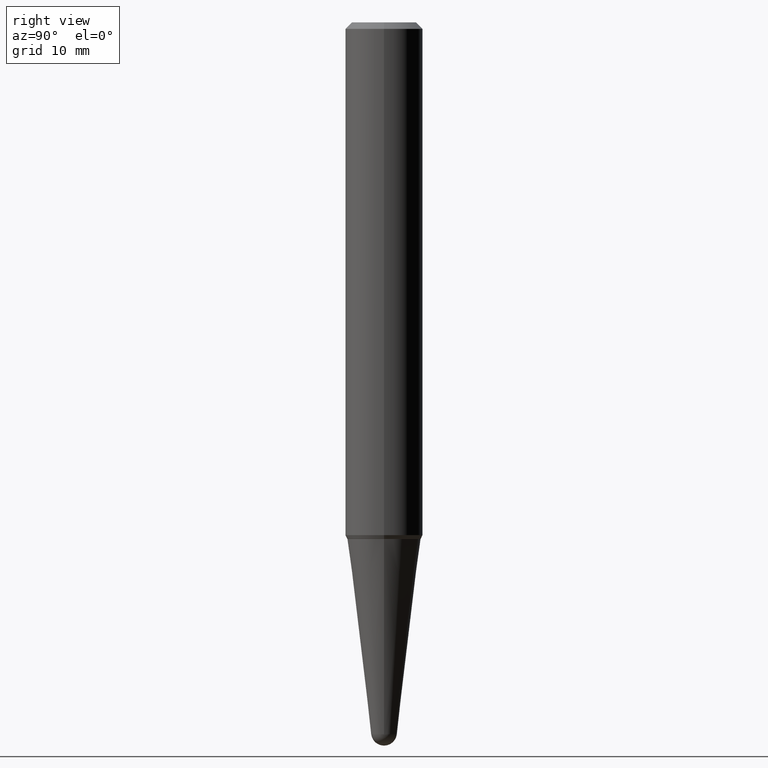
[diagram: clean part render]
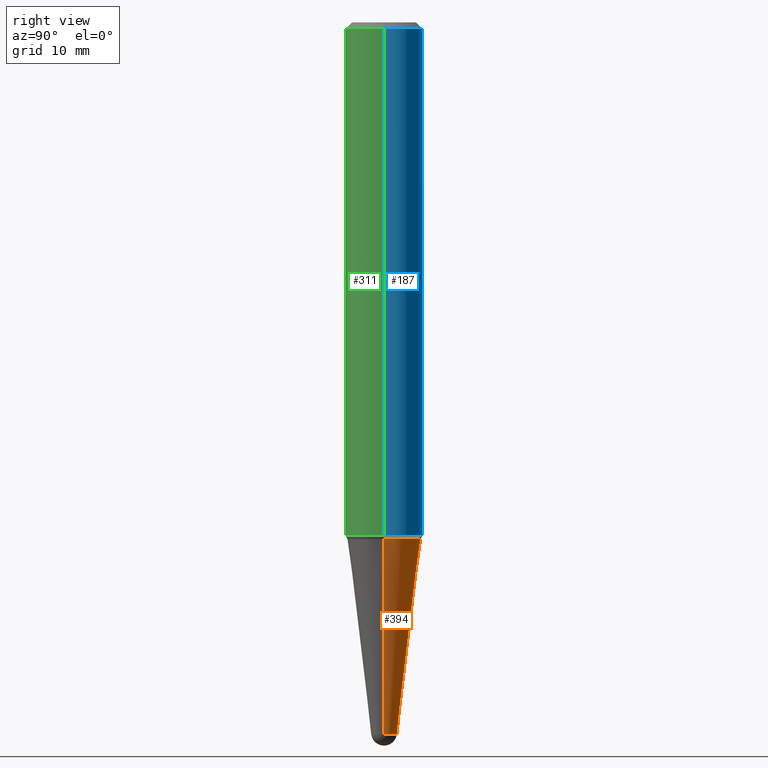
[diagram: same view with three faces highlighted in distinct colors, each labeled with its STEP entity id]
A machine part, right view with three faces highlighted in distinct colors.
Their STEP definitions:

[orange] entity #394 — the highlighted conical surface has half-angle 7 deg.
#5 = DIRECTION ( 'NONE',  ( -2.445468806185136597E-29, 3.491481338843145583E-15, 1.000000000000000000 ) ) ;
#7 = CIRCLE ( 'NONE', #357, 0.06203413447758302640 ) ;
#10 = CARTESIAN_POINT ( 'NONE',  ( 8.424925751119379227E-29, -1.202856113591557066E-14, -3.445116833962821534 ) ) ;
#27 = VERTEX_POINT ( 'NONE', #62 ) ;
#39 = DIRECTION ( 'NONE',  ( 1.000000000000000000, -6.982962677686273810E-15, 0.000000000000000000 ) ) ;
#62 = CARTESIAN_POINT ( 'NONE',  ( -0.06203413447758302640, -9.525575862499874588E-15, -3.445116833962821534 ) ) ;
#68 = VECTOR ( 'NONE', #197, 39.37007874015748143 ) ;
#71 = DIRECTION ( 'NONE',  ( -2.445468806185136597E-29, 3.491481338843145583E-15, 1.000000000000000000 ) ) ;
#90 = DIRECTION ( 'NONE',  ( -0.1218693434051475594, 4.331390133080061195E-15, 0.9925461516413219831 ) ) ;
#92 = EDGE_CURVE ( 'NONE', #27, #412, #225, .T. ) ;
#105 = CARTESIAN_POINT ( 'NONE',  ( 8.424925751119379227E-29, -1.202856113591557066E-14, -3.445116833962821534 ) ) ;
#110 = VERTEX_POINT ( 'NONE', #339 ) ;
#116 = CIRCLE ( 'NONE', #165, 0.06203413447758302640 ) ;
#121 = CARTESIAN_POINT ( 'NONE',  ( -0.1780798899376515865, -7.463369625306297822E-15, -2.499999999999999556 ) ) ;
#139 = CARTESIAN_POINT ( 'NONE',  ( 8.424925751119379227E-29, -1.202856113591557066E-14, -3.445116833962821534 ) ) ;
#141 = VECTOR ( 'NONE', #90, 39.37007874015748143 ) ;
#145 = DIRECTION ( 'NONE',  ( -2.445468806185136597E-29, 3.491481338843145583E-15, 1.000000000000000000 ) ) ;
#146 = EDGE_CURVE ( 'NONE', #408, #27, #116, .T. ) ;
#165 = AXIS2_PLACEMENT_3D ( 'NONE', #139, #71, #276 ) ;
#197 = DIRECTION ( 'NONE',  ( 0.1218693434051475594, 2.614447289843978112E-15, 0.9925461516413219831 ) ) ;
#210 = FACE_OUTER_BOUND ( 'NONE', #299, .T. ) ;
#225 = LINE ( 'NONE', #266, #141 ) ;
#229 = CARTESIAN_POINT ( 'NONE',  ( 4.331820457996177602E-16, 0.06203413447757105681, -3.445116833962821534 ) ) ;
#242 = DIRECTION ( 'NONE',  ( -2.445468806185136597E-29, 3.491481338843145583E-15, 1.000000000000000000 ) ) ;
#246 = AXIS2_PLACEMENT_3D ( 'NONE', #10, #145, #39 ) ;
#250 = CARTESIAN_POINT ( 'NONE',  ( 6.113672015462840371E-29, -8.728703347107863365E-15, -2.499999999999999556 ) ) ;
#254 = EDGE_CURVE ( 'NONE', #345, #110, #312, .T. ) ;
#255 = ORIENTED_EDGE ( 'NONE', *, *, #358, .F. ) ;
#266 = CARTESIAN_POINT ( 'NONE',  ( -0.06203413447758302640, -1.158778209969345293E-14, -3.445116833962821534 ) ) ;
#269 = EDGE_CURVE ( 'NONE', #345, #408, #7, .T. ) ;
#276 = DIRECTION ( 'NONE',  ( 1.000000000000000000, -6.982962677686273810E-15, 0.000000000000000000 ) ) ;
#279 = CIRCLE ( 'NONE', #415, 0.1780798899376515865 ) ;
#299 = EDGE_LOOP ( 'NONE', ( #320, #421, #255, #446, #377 ) ) ;
#312 = LINE ( 'NONE', #423, #68 ) ;
#313 = CARTESIAN_POINT ( 'NONE',  ( 0.06203413447758302640, -1.121698587695203239E-14, -3.445116833962821534 ) ) ;
#320 = ORIENTED_EDGE ( 'NONE', *, *, #146, .T. ) ;
#339 = CARTESIAN_POINT ( 'NONE',  ( 0.1780798899376515865, -9.972228572188961407E-15, -2.499999999999999556 ) ) ;
#345 = VERTEX_POINT ( 'NONE', #313 ) ;
#356 = DIRECTION ( 'NONE',  ( 1.000000000000000000, -6.982962677686273810E-15, 0.000000000000000000 ) ) ;
#357 = AXIS2_PLACEMENT_3D ( 'NONE', #105, #242, #356 ) ;
#358 = EDGE_CURVE ( 'NONE', #110, #412, #279, .T. ) ;
#377 = ORIENTED_EDGE ( 'NONE', *, *, #269, .T. ) ;
#394 = ADVANCED_FACE ( 'NONE', ( #210 ), #453, .T. ) ;
#397 = DIRECTION ( 'NONE',  ( 1.000000000000000000, -6.982962677686261189E-15, 0.000000000000000000 ) ) ;
#408 = VERTEX_POINT ( 'NONE', #229 ) ;
#412 = VERTEX_POINT ( 'NONE', #121 ) ;
#415 = AXIS2_PLACEMENT_3D ( 'NONE', #250, #5, #397 ) ;
#421 = ORIENTED_EDGE ( 'NONE', *, *, #92, .T. ) ;
#423 = CARTESIAN_POINT ( 'NONE',  ( 0.06203413447758302640, -1.246174318171510337E-14, -3.445116833962821534 ) ) ;
#446 = ORIENTED_EDGE ( 'NONE', *, *, #254, .F. ) ;
#453 = CONICAL_SURFACE ( 'NONE', #246, 0.06203413447758302640, 0.1221730476396031551 ) ;

[blue] entity #187 — the highlighted cylindrical surface (partial cylindrical patch) has radius 4.7625 mm, axis along (-0, 0, 1).
#29 = LINE ( 'NONE', #65, #213 ) ;
#33 = DIRECTION ( 'NONE',  ( -2.445468806185136877E-29, 3.491481338843145188E-15, 1.000000000000000000 ) ) ;
#35 = AXIS2_PLACEMENT_3D ( 'NONE', #245, #392, #209 ) ;
#59 = CARTESIAN_POINT ( 'NONE',  ( 0.1874999999999999722, -1.418414293905023123E-15, -0.03125000000000003469 ) ) ;
#61 = AXIS2_PLACEMENT_3D ( 'NONE', #168, #271, #169 ) ;
#65 = CARTESIAN_POINT ( 'NONE',  ( 0.1875000000000001388, -1.309305502066173825E-15, 5.931196827434387479E-16 ) ) ;
#69 = LINE ( 'NONE', #125, #322 ) ;
#79 = EDGE_LOOP ( 'NONE', ( #182, #215, #227, #170 ) ) ;
#100 = DIRECTION ( 'NONE',  ( -2.445468806185136877E-29, 3.491481338843145188E-15, 1.000000000000000000 ) ) ;
#106 = EDGE_CURVE ( 'NONE', #350, #150, #280, .T. ) ;
#107 = VERTEX_POINT ( 'NONE', #59 ) ;
#125 = CARTESIAN_POINT ( 'NONE',  ( -0.1875000000000001388, 1.332267629550191201E-15, 5.931196827434205055E-16 ) ) ;
#150 = VERTEX_POINT ( 'NONE', #244 ) ;
#154 = AXIS2_PLACEMENT_3D ( 'NONE', #230, #369, #333 ) ;
#168 = CARTESIAN_POINT ( 'NONE',  ( 7.642090019328561499E-31, -1.091087918388484350E-16, -0.03125000000000003469 ) ) ;
#169 = DIRECTION ( 'NONE',  ( 1.000000000000000000, -6.982962677686266711E-15, 0.000000000000000000 ) ) ;
#170 = ORIENTED_EDGE ( 'NONE', *, *, #220, .F. ) ;
#177 = CARTESIAN_POINT ( 'NONE',  ( 0.1875000000000003331, -9.973217484784825205E-15, -2.481443015699839716 ) ) ;
#182 = ORIENTED_EDGE ( 'NONE', *, *, #106, .T. ) ;
#187 = ADVANCED_FACE ( 'NONE', ( #386 ), #205, .T. ) ;
#205 = CYLINDRICAL_SURFACE ( 'NONE', #35, 0.1875000000000001388 ) ;
#209 = DIRECTION ( 'NONE',  ( 1.000000000000000000, -6.982962677686266711E-15, 4.852736867747362844E-29 ) ) ;
#213 = VECTOR ( 'NONE', #33, 39.37007874015748143 ) ;
#215 = ORIENTED_EDGE ( 'NONE', *, *, #228, .T. ) ;
#220 = EDGE_CURVE ( 'NONE', #350, #107, #29, .T. ) ;
#227 = ORIENTED_EDGE ( 'NONE', *, *, #323, .F. ) ;
#228 = EDGE_CURVE ( 'NONE', #150, #241, #69, .T. ) ;
#230 = CARTESIAN_POINT ( 'NONE',  ( 6.068291489219931183E-29, -8.663911982718648619E-15, -2.481443015699839716 ) ) ;
#241 = VERTEX_POINT ( 'NONE', #307 ) ;
#244 = CARTESIAN_POINT ( 'NONE',  ( -0.1875000000000003331, -7.331644353168459193E-15, -2.481443015699839716 ) ) ;
#245 = CARTESIAN_POINT ( 'NONE',  ( -1.450455682483482035E-44, 2.070866303999251778E-30, 5.931196827434296760E-16 ) ) ;
#271 = DIRECTION ( 'NONE',  ( -2.445468806185136597E-29, 3.491481338843145583E-15, 1.000000000000000000 ) ) ;
#280 = CIRCLE ( 'NONE', #154, 0.1875000000000003331 ) ;
#307 = CARTESIAN_POINT ( 'NONE',  ( -0.1874999999999999722, -3.054242757728558250E-15, -0.03125000000000003469 ) ) ;
#322 = VECTOR ( 'NONE', #100, 39.37007874015748143 ) ;
#323 = EDGE_CURVE ( 'NONE', #107, #241, #445, .T. ) ;
#333 = DIRECTION ( 'NONE',  ( 1.000000000000000000, -6.982962677686265922E-15, 0.000000000000000000 ) ) ;
#350 = VERTEX_POINT ( 'NONE', #177 ) ;
#369 = DIRECTION ( 'NONE',  ( -2.445468806185136597E-29, 3.491481338843145583E-15, 1.000000000000000000 ) ) ;
#386 = FACE_OUTER_BOUND ( 'NONE', #79, .T. ) ;
#392 = DIRECTION ( 'NONE',  ( -2.445468806185136597E-29, 3.491481338843145583E-15, 1.000000000000000000 ) ) ;
#445 = CIRCLE ( 'NONE', #61, 0.1874999999999999722 ) ;

[green] entity #311 — the highlighted cylindrical surface (partial cylindrical patch) has radius 4.7625 mm, axis along (-0, 0, 1).
#13 = ORIENTED_EDGE ( 'NONE', *, *, #458, .F. ) ;
#16 = CARTESIAN_POINT ( 'NONE',  ( 6.068291489219931183E-29, -8.663911982718648619E-15, -2.481443015699839716 ) ) ;
#20 = DIRECTION ( 'NONE',  ( -2.445468806185136597E-29, 3.491481338843145583E-15, 1.000000000000000000 ) ) ;
#29 = LINE ( 'NONE', #65, #213 ) ;
#33 = DIRECTION ( 'NONE',  ( -2.445468806185136877E-29, 3.491481338843145188E-15, 1.000000000000000000 ) ) ;
#57 = EDGE_CURVE ( 'NONE', #150, #350, #85, .T. ) ;
#59 = CARTESIAN_POINT ( 'NONE',  ( 0.1874999999999999722, -1.418414293905023123E-15, -0.03125000000000003469 ) ) ;
#64 = DIRECTION ( 'NONE',  ( 1.000000000000000000, -6.982962677686266711E-15, 0.000000000000000000 ) ) ;
#65 = CARTESIAN_POINT ( 'NONE',  ( 0.1875000000000001388, -1.309305502066173825E-15, 5.931196827434387479E-16 ) ) ;
#69 = LINE ( 'NONE', #125, #322 ) ;
#85 = CIRCLE ( 'NONE', #362, 0.1875000000000003331 ) ;
#100 = DIRECTION ( 'NONE',  ( -2.445468806185136877E-29, 3.491481338843145188E-15, 1.000000000000000000 ) ) ;
#101 = FACE_OUTER_BOUND ( 'NONE', #434, .T. ) ;
#102 = CARTESIAN_POINT ( 'NONE',  ( -1.450455682483482035E-44, 2.070866303999251778E-30, 5.931196827434296760E-16 ) ) ;
#103 = AXIS2_PLACEMENT_3D ( 'NONE', #295, #20, #64 ) ;
#107 = VERTEX_POINT ( 'NONE', #59 ) ;
#125 = CARTESIAN_POINT ( 'NONE',  ( -0.1875000000000001388, 1.332267629550191201E-15, 5.931196827434205055E-16 ) ) ;
#150 = VERTEX_POINT ( 'NONE', #244 ) ;
#177 = CARTESIAN_POINT ( 'NONE',  ( 0.1875000000000003331, -9.973217484784825205E-15, -2.481443015699839716 ) ) ;
#199 = DIRECTION ( 'NONE',  ( 1.000000000000000000, -6.982962677686265922E-15, 0.000000000000000000 ) ) ;
#213 = VECTOR ( 'NONE', #33, 39.37007874015748143 ) ;
#220 = EDGE_CURVE ( 'NONE', #350, #107, #29, .T. ) ;
#228 = EDGE_CURVE ( 'NONE', #150, #241, #69, .T. ) ;
#237 = CYLINDRICAL_SURFACE ( 'NONE', #239, 0.1875000000000001388 ) ;
#239 = AXIS2_PLACEMENT_3D ( 'NONE', #102, #381, #461 ) ;
#241 = VERTEX_POINT ( 'NONE', #307 ) ;
#244 = CARTESIAN_POINT ( 'NONE',  ( -0.1875000000000003331, -7.331644353168459193E-15, -2.481443015699839716 ) ) ;
#277 = ORIENTED_EDGE ( 'NONE', *, *, #57, .T. ) ;
#293 = DIRECTION ( 'NONE',  ( -2.445468806185136597E-29, 3.491481338843145583E-15, 1.000000000000000000 ) ) ;
#295 = CARTESIAN_POINT ( 'NONE',  ( 7.642090019328561499E-31, -1.091087918388484350E-16, -0.03125000000000003469 ) ) ;
#296 = CIRCLE ( 'NONE', #103, 0.1874999999999999722 ) ;
#307 = CARTESIAN_POINT ( 'NONE',  ( -0.1874999999999999722, -3.054242757728558250E-15, -0.03125000000000003469 ) ) ;
#311 = ADVANCED_FACE ( 'NONE', ( #101 ), #237, .T. ) ;
#322 = VECTOR ( 'NONE', #100, 39.37007874015748143 ) ;
#350 = VERTEX_POINT ( 'NONE', #177 ) ;
#360 = ORIENTED_EDGE ( 'NONE', *, *, #220, .T. ) ;
#362 = AXIS2_PLACEMENT_3D ( 'NONE', #16, #293, #199 ) ;
#381 = DIRECTION ( 'NONE',  ( -2.445468806185136597E-29, 3.491481338843145583E-15, 1.000000000000000000 ) ) ;
#434 = EDGE_LOOP ( 'NONE', ( #455, #277, #360, #13 ) ) ;
#455 = ORIENTED_EDGE ( 'NONE', *, *, #228, .F. ) ;
#458 = EDGE_CURVE ( 'NONE', #241, #107, #296, .T. ) ;
#461 = DIRECTION ( 'NONE',  ( 1.000000000000000000, -6.982962677686266711E-15, 4.852736867747362844E-29 ) ) ;